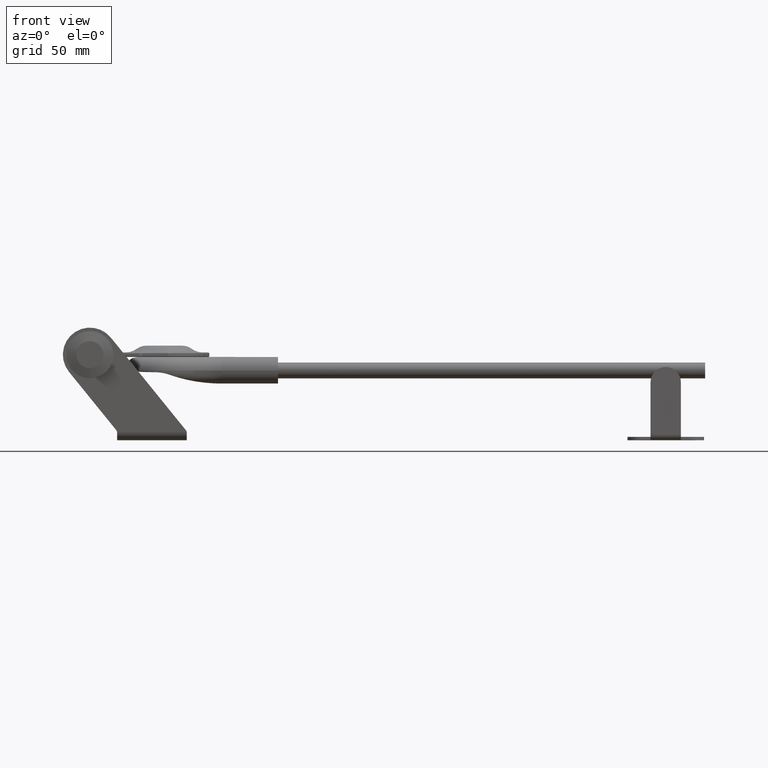
[diagram: clean part render]
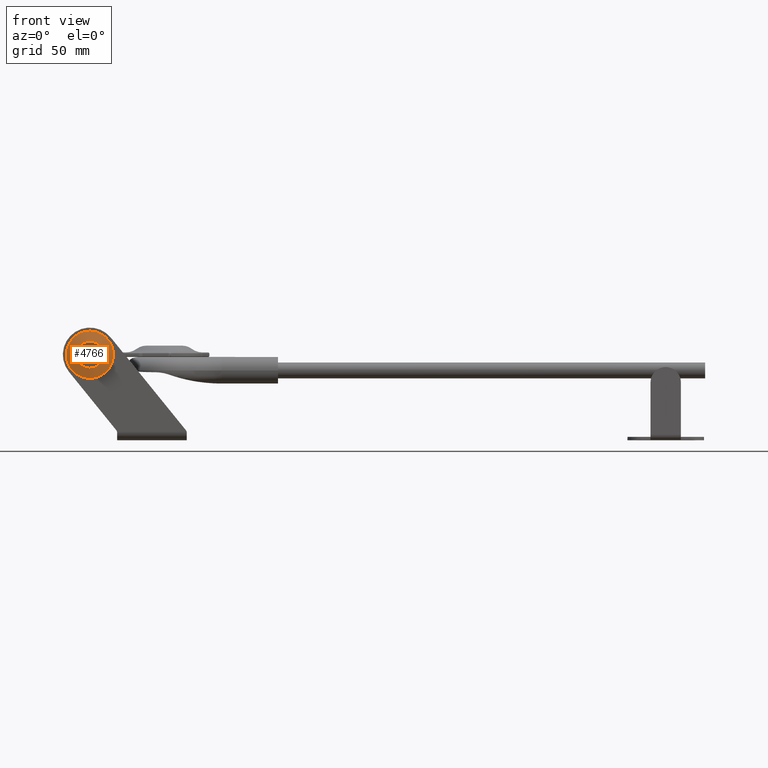
[diagram: same view with one face highlighted and labeled with its STEP entity id]
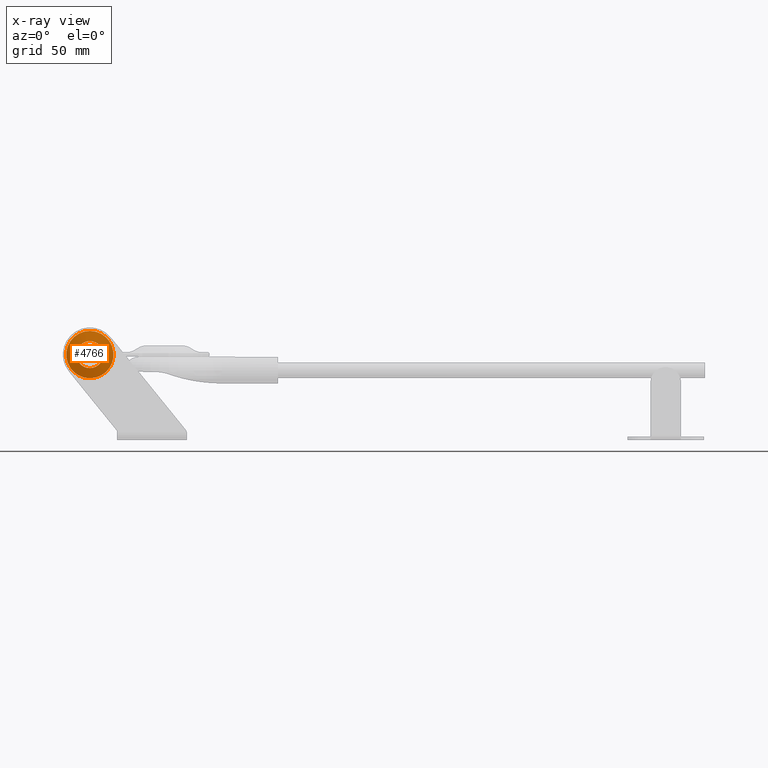
[diagram: x-ray of the same camera — body ghosted, the highlighted face saturated]
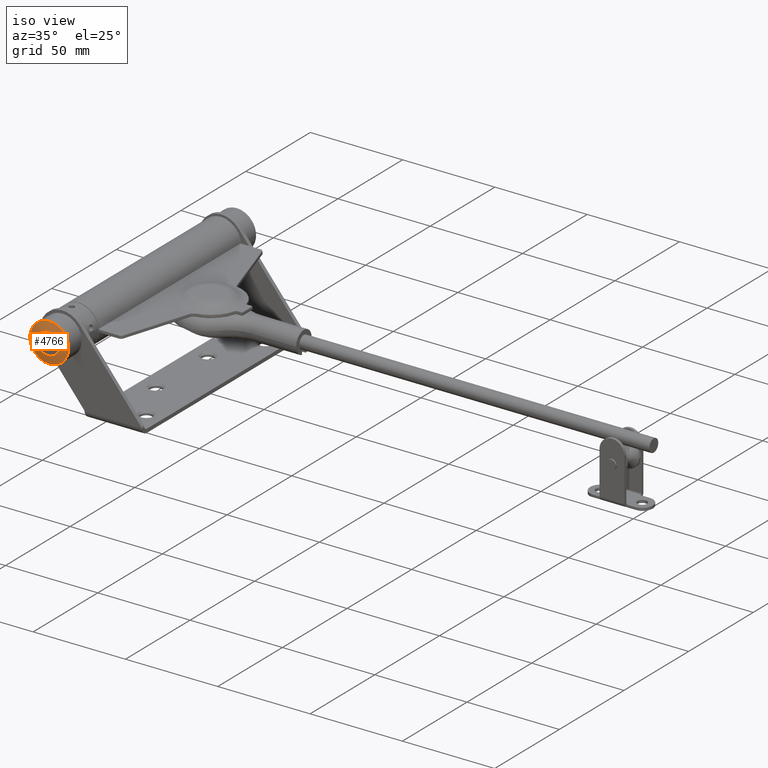
[diagram: same view with one face highlighted and labeled with its STEP entity id]
A machine part, front view. The second image highlights one B-rep face of the part: STEP entity #4766.
The next image is the same camera in x-ray: the body ghosted, the highlighted face saturated — about 0% of this face is hidden behind the body in this view.
A second angle (iso view) of the same face is appended — the face is thin or edge-on in the first view.
In plain terms, the highlighted conical surface has half-angle 77.471 deg.
Its self-contained STEP definition (entity closure, byte-faithful):
#828 = VERTEX_POINT ( 'NONE', #15693 ) ;
#1638 = AXIS2_PLACEMENT_3D ( 'NONE', #10054, #6327, #19064 ) ;
#1969 = ORIENTED_EDGE ( 'NONE', *, *, #18615, .T. ) ;
#4262 = VERTEX_POINT ( 'NONE', #4936 ) ;
#4766 = ADVANCED_FACE ( 'NONE', ( #20045, #5523 ), #15437, .T. ) ;
#4936 = CARTESIAN_POINT ( 'NONE',  ( 0.000000000000000000, 10.99999999999999645, -6.000000000000079936 ) ) ;
#5523 = FACE_BOUND ( 'NONE', #20554, .T. ) ;
#5866 = CIRCLE ( 'NONE', #17620, 10.50000000000013856 ) ;
#6327 = DIRECTION ( 'NONE',  ( 0.000000000000000000, -1.000000000000000000, 2.052683297350817681E-47 ) ) ;
#7415 = DIRECTION ( 'NONE',  ( 0.000000000000000000, 0.000000000000000000, -1.000000000000000000 ) ) ;
#7568 = DIRECTION ( 'NONE',  ( 0.000000000000000000, 0.000000000000000000, -1.000000000000000000 ) ) ;
#10017 = EDGE_LOOP ( 'NONE', ( #10662 ) ) ;
#10054 = CARTESIAN_POINT ( 'NONE',  ( 0.000000000000000000, 10.99999999999999645, 0.000000000000000000 ) ) ;
#10662 = ORIENTED_EDGE ( 'NONE', *, *, #13180, .F. ) ;
#10992 = CIRCLE ( 'NONE', #19042, 6.000000000000079936 ) ;
#13180 = EDGE_CURVE ( 'NONE', #828, #828, #5866, .T. ) ;
#14533 = CARTESIAN_POINT ( 'NONE',  ( 0.000000000000000000, 9.999999999999994671, 0.000000000000000000 ) ) ;
#15437 = CONICAL_SURFACE ( 'NONE', #1638, 6.000000000000079936, 1.352127380920954858 ) ;
#15693 = CARTESIAN_POINT ( 'NONE',  ( 0.000000000000000000, 9.999999999999994671, -10.50000000000013856 ) ) ;
#17620 = AXIS2_PLACEMENT_3D ( 'NONE', #14533, #20303, #7415 ) ;
#18615 = EDGE_CURVE ( 'NONE', #4262, #4262, #10992, .T. ) ;
#19042 = AXIS2_PLACEMENT_3D ( 'NONE', #21974, #22132, #7568 ) ;
#19064 = DIRECTION ( 'NONE',  ( 0.000000000000000000, 0.000000000000000000, -1.000000000000000000 ) ) ;
#20045 = FACE_OUTER_BOUND ( 'NONE', #10017, .T. ) ;
#20303 = DIRECTION ( 'NONE',  ( 0.000000000000000000, -1.000000000000000000, 2.052683297350817681E-47 ) ) ;
#20554 = EDGE_LOOP ( 'NONE', ( #1969 ) ) ;
#21974 = CARTESIAN_POINT ( 'NONE',  ( 0.000000000000000000, 10.99999999999999645, 0.000000000000000000 ) ) ;
#22132 = DIRECTION ( 'NONE',  ( 0.000000000000000000, -1.000000000000000000, 2.052683297350817681E-47 ) ) ;